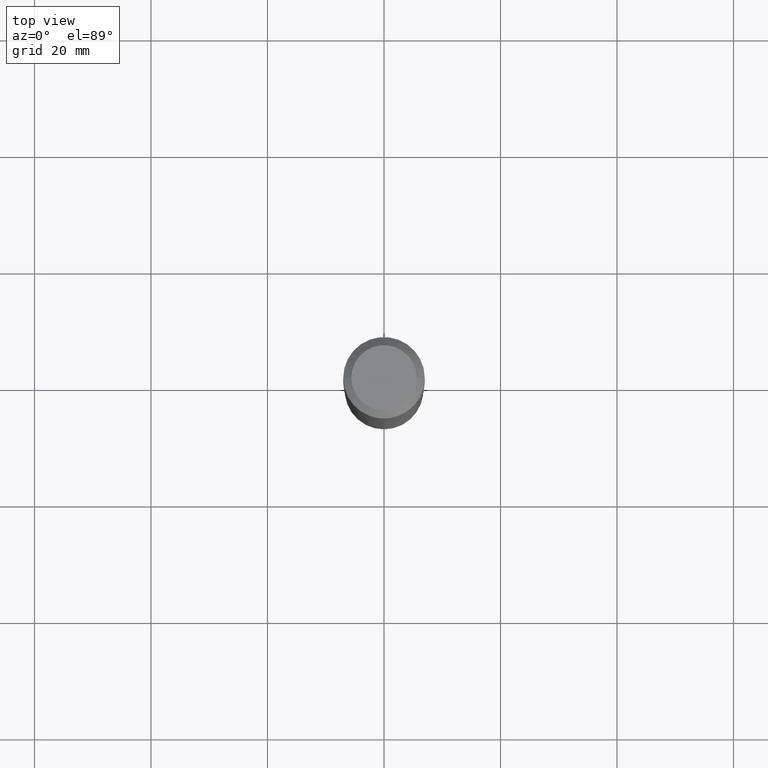
[diagram: clean part render]
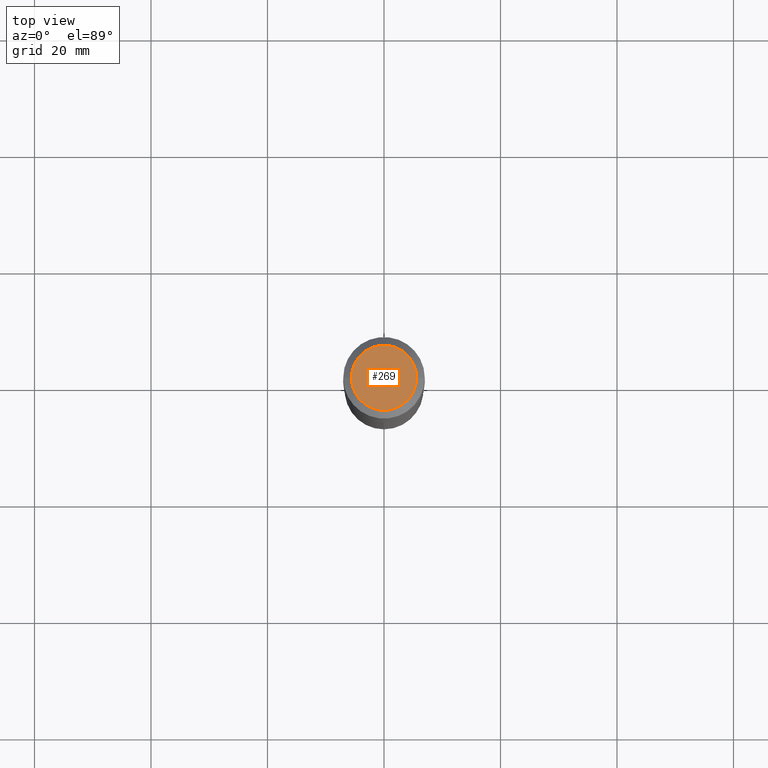
[diagram: same view with one face highlighted and labeled with its STEP entity id]
A machine part, top view. The second image highlights one B-rep face of the part: STEP entity #269.
In plain terms, the highlighted planar face has unit normal (0, -0, -1).
Its self-contained STEP definition (entity closure, byte-faithful):
#21 = DIRECTION ( 'NONE',  ( 1.000000000000000000, -6.982962677686266711E-15, 4.876132675269083677E-29 ) ) ;
#34 = DIRECTION ( 'NONE',  ( -1.000000000000000000, 6.982962677686265922E-15, -4.876176775795935793E-29 ) ) ;
#62 = CARTESIAN_POINT ( 'NONE',  ( -9.439721640706190018E-47, 1.347742071746724849E-32, 3.860086710912454339E-18 ) ) ;
#76 = CARTESIAN_POINT ( 'NONE',  ( -9.439721640706190018E-47, 1.347742071746724849E-32, 3.860086710912454339E-18 ) ) ;
#107 = CARTESIAN_POINT ( 'NONE',  ( -4.719860820353095009E-47, 6.738710358733624243E-33, 1.930043355456227170E-18 ) ) ;
#109 = DIRECTION ( 'NONE',  ( -2.445468806185136597E-29, 3.491481338843145583E-15, 1.000000000000000000 ) ) ;
#115 = DIRECTION ( 'NONE',  ( 2.438088387897960049E-29, -3.491481338843145188E-15, -1.000000000000000000 ) ) ;
#138 = CIRCLE ( 'NONE', #149, 0.2204800000000000093 ) ;
#149 = AXIS2_PLACEMENT_3D ( 'NONE', #76, #109, #238 ) ;
#174 = CARTESIAN_POINT ( 'NONE',  ( -0.2204800000000000093, 1.635828836874783961E-15, 3.860086710901350968E-18 ) ) ;
#177 = VERTEX_POINT ( 'NONE', #174 ) ;
#227 = CIRCLE ( 'NONE', #294, 0.2204800000000000093 ) ;
#238 = DIRECTION ( 'NONE',  ( 1.000000000000000000, -6.982962677686266711E-15, 4.876132675269083677E-29 ) ) ;
#246 = VERTEX_POINT ( 'NONE', #447 ) ;
#258 = PLANE ( 'NONE',  #437 ) ;
#260 = FACE_OUTER_BOUND ( 'NONE', #442, .T. ) ;
#269 = ADVANCED_FACE ( 'NONE', ( #260 ), #258, .F. ) ;
#284 = ORIENTED_EDGE ( 'NONE', *, *, #298, .T. ) ;
#294 = AXIS2_PLACEMENT_3D ( 'NONE', #62, #399, #21 ) ;
#298 = EDGE_CURVE ( 'NONE', #177, #246, #138, .T. ) ;
#394 = EDGE_CURVE ( 'NONE', #246, #177, #227, .T. ) ;
#399 = DIRECTION ( 'NONE',  ( -2.445468806185136597E-29, 3.491481338843145583E-15, 1.000000000000000000 ) ) ;
#400 = ORIENTED_EDGE ( 'NONE', *, *, #394, .T. ) ;
#437 = AXIS2_PLACEMENT_3D ( 'NONE', #107, #115, #34 ) ;
#442 = EDGE_LOOP ( 'NONE', ( #284, #400 ) ) ;
#447 = CARTESIAN_POINT ( 'NONE',  ( 0.2204800000000000093, -1.797903149065768707E-15, 3.860086710924123164E-18 ) ) ;